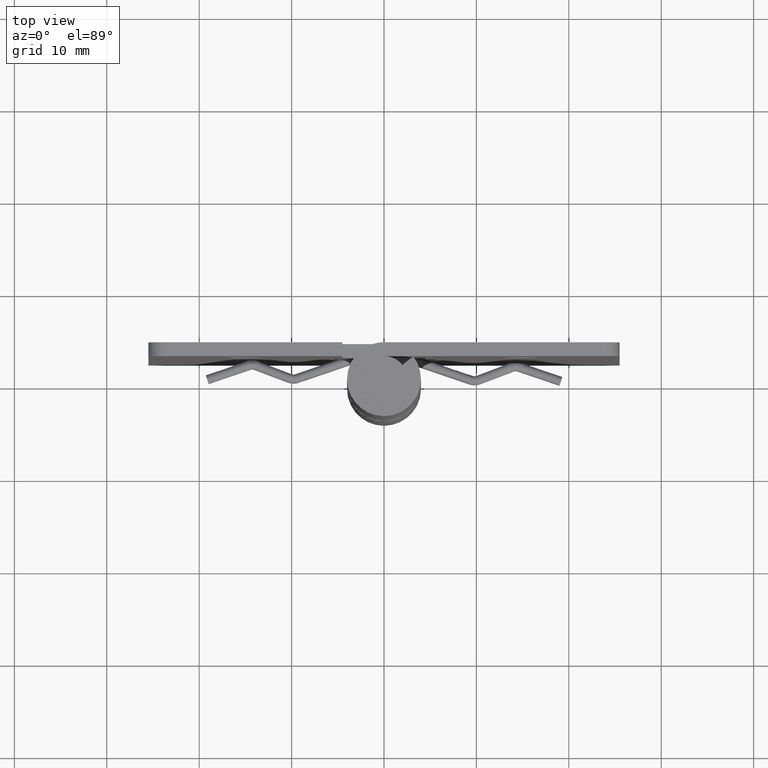
[diagram: clean part render]
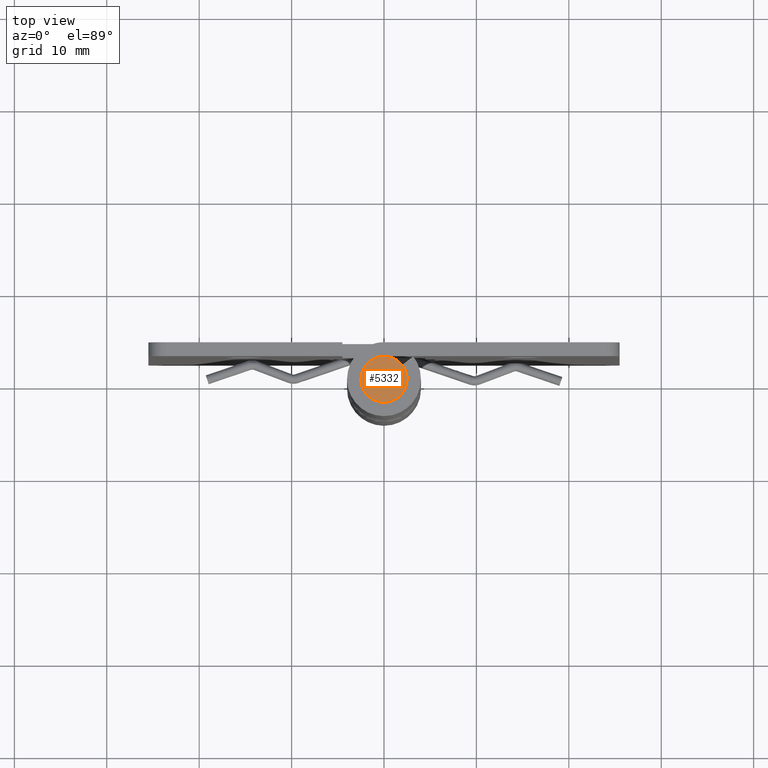
[diagram: same view with one face highlighted and labeled with its STEP entity id]
A machine part, top view. The second image highlights one B-rep face of the part: STEP entity #5332.
In plain terms, the highlighted face is a freeform B-spline surface patch.
Its self-contained STEP definition (entity closure, byte-faithful):
#5164=CARTESIAN_POINT('',(-0.295085586690102,2.482523815903235,59.999985000000002));
#5165=VERTEX_POINT('',#5164);
#5171=CARTESIAN_POINT('',(2.499999999999800,0.0,59.999985000000002));
#5172=VERTEX_POINT('',#5171);
#5173=CARTESIAN_POINT('',(-0.295085586690102,2.482523815903235,59.999984999999995));
#5174=CARTESIAN_POINT('',(-0.148060299178503,2.499999999999800,59.999985000000002));
#5175=CARTESIAN_POINT('',(0.0,2.499999999999800,59.999985000000002));
#5176=CARTESIAN_POINT('',(2.499999999999801,2.499999999999801,59.999985000000002));
#5177=CARTESIAN_POINT('',(2.499999999999800,0.0,59.999985000000002));
#5185=(BOUNDED_CURVE()B_SPLINE_CURVE(2,(#5173,#5174,#5175,#5176,#5177),.UNSPECIFIED.,.F.,.U.)B_SPLINE_CURVE_WITH_KNOTS((3,2,3),(0.229562473509078,0.250000000000000,0.500000000000000),.UNSPECIFIED.)CURVE()GEOMETRIC_REPRESENTATION_ITEM()RATIONAL_B_SPLINE_CURVE((0.956026754175015,0.976055948325954,1.0,0.707106781186548,1.0))REPRESENTATION_ITEM(''));
#5186=EDGE_CURVE('',#5165,#5172,#5185,.T.);
#5188=CARTESIAN_POINT('',(0.152621348934108,-2.495336996048536,59.999985000000002));
#5189=VERTEX_POINT('',#5188);
#5190=CARTESIAN_POINT('',(2.499999999999800,0.0,59.999985000000002));
#5191=CARTESIAN_POINT('',(2.499999999999800,-2.351765167080897,59.999985000000009));
#5192=CARTESIAN_POINT('',(0.152621348934108,-2.495336996048537,59.999984999999995));
#5200=(BOUNDED_CURVE()B_SPLINE_CURVE(2,(#5190,#5191,#5192),.UNSPECIFIED.,.F.,.U.)B_SPLINE_CURVE_WITH_KNOTS((3,3),(0.500000000000000,0.739332962228556),.UNSPECIFIED.)CURVE()GEOMETRIC_REPRESENTATION_ITEM()RATIONAL_B_SPLINE_CURVE((1.0,0.719603993298880,0.976072041644456))REPRESENTATION_ITEM(''));
#5201=EDGE_CURVE('',#5172,#5189,#5200,.T.);
#5275=CARTESIAN_POINT('',(-2.499999999999800,0.0,59.999985000000002));
#5276=VERTEX_POINT('',#5275);
#5277=CARTESIAN_POINT('',(0.152621348934108,-2.495336996048536,59.999984999999995));
#5278=CARTESIAN_POINT('',(0.076381908343716,-2.499999999999801,59.999984999999995));
#5279=CARTESIAN_POINT('',(0.0,-2.499999999999800,59.999985000000002));
#5280=CARTESIAN_POINT('',(-2.499999999999801,-2.499999999999801,59.999985000000002));
#5281=CARTESIAN_POINT('',(-2.499999999999800,0.0,59.999985000000002));
#5289=(BOUNDED_CURVE()B_SPLINE_CURVE(2,(#5277,#5278,#5279,#5280,#5281),.UNSPECIFIED.,.F.,.U.)B_SPLINE_CURVE_WITH_KNOTS((3,2,3),(0.739332962228557,0.750000000000000,1.0),.UNSPECIFIED.)CURVE()GEOMETRIC_REPRESENTATION_ITEM()RATIONAL_B_SPLINE_CURVE((0.976072041644458,0.987502787887669,1.0,0.707106781186548,1.0))REPRESENTATION_ITEM(''));
#5290=EDGE_CURVE('',#5189,#5276,#5289,.T.);
#5292=CARTESIAN_POINT('',(-2.499999999999800,0.0,59.999985000000002));
#5293=CARTESIAN_POINT('',(-2.499999999999801,2.220436314791358,59.999984999999995));
#5294=CARTESIAN_POINT('',(-0.295085586690102,2.482523815903234,59.999985000000002));
#5302=(BOUNDED_CURVE()B_SPLINE_CURVE(2,(#5292,#5293,#5294),.UNSPECIFIED.,.F.,.U.)B_SPLINE_CURVE_WITH_KNOTS((3,3),(0.0,0.229562473509077),.UNSPECIFIED.)CURVE()GEOMETRIC_REPRESENTATION_ITEM()RATIONAL_B_SPLINE_CURVE((1.0,0.731050832860594,0.956026754175015))REPRESENTATION_ITEM(''));
#5303=EDGE_CURVE('',#5276,#5165,#5302,.T.);
#5321=CARTESIAN_POINT('',(2.749749990308811,-2.749689142530777,59.999985000000002));
#5322=CARTESIAN_POINT('',(-2.749750124419261,-2.749689142530777,59.999985000000002));
#5323=CARTESIAN_POINT('',(2.749749990308811,2.749704520529129,59.999985000000002));
#5324=CARTESIAN_POINT('',(-2.749750124419261,2.749704520529129,59.999985000000002));
#5325=B_SPLINE_SURFACE_WITH_KNOTS('',1,1,((#5321,#5323),(#5322,#5324)),.UNSPECIFIED.,.F.,.F.,.U.,(2,2),(2,2),(0.0,5.499500114728072),(0.0,5.499393663059906),.UNSPECIFIED.);
#5326=ORIENTED_EDGE('',*,*,#5290,.F.);
#5327=ORIENTED_EDGE('',*,*,#5201,.F.);
#5328=ORIENTED_EDGE('',*,*,#5186,.F.);
#5329=ORIENTED_EDGE('',*,*,#5303,.F.);
#5330=EDGE_LOOP('',(#5326,#5327,#5328,#5329));
#5331=FACE_OUTER_BOUND('',#5330,.T.);
#5332=ADVANCED_FACE('',(#5331),#5325,.F.);